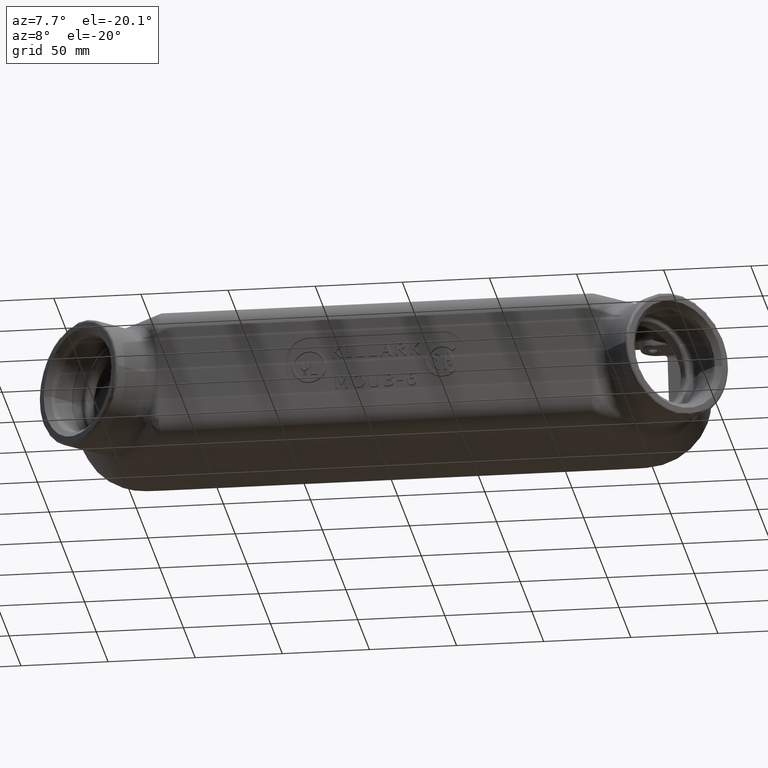
[diagram: clean part render]
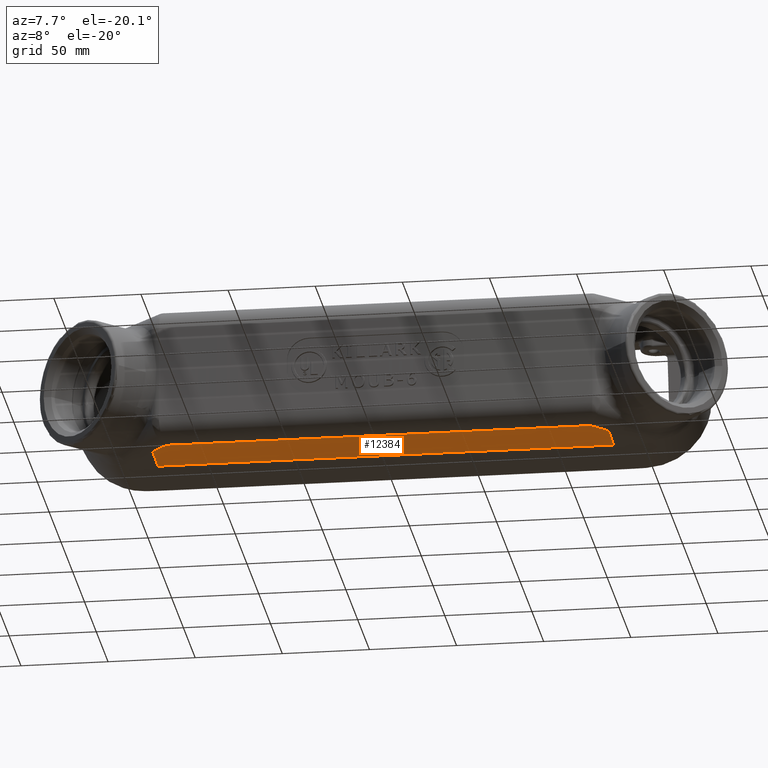
[diagram: same view with one face highlighted and labeled with its STEP entity id]
A machine part, auxiliary view. The second image highlights one B-rep face of the part: STEP entity #12384.
In plain terms, the highlighted planar face has unit normal (0, -0.0262, -0.9997).
Its self-contained STEP definition (entity closure, byte-faithful):
#1085=PLANE('',#13354);
#1733=FACE_OUTER_BOUND('',#2506,.T.);
#2506=EDGE_LOOP('',(#10704,#10705,#10706,#10707,#10708,#10709));
#3478=LINE('',#27055,#4368);
#3479=LINE('',#27057,#4369);
#3480=LINE('',#27084,#4370);
#3496=LINE('',#27524,#4386);
#3497=LINE('',#27558,#4387);
#3498=LINE('',#27559,#4388);
#4368=VECTOR('',#15511,0.393700787401575);
#4369=VECTOR('',#15514,0.393700787401575);
#4370=VECTOR('',#15515,0.393700787401575);
#4386=VECTOR('',#15589,0.393700787401575);
#4387=VECTOR('',#15596,0.393700787401575);
#4388=VECTOR('',#15597,0.393700787401575);
#5867=VERTEX_POINT('',#26460);
#5868=VERTEX_POINT('',#26483);
#5899=VERTEX_POINT('',#26993);
#5900=VERTEX_POINT('',#27078);
#5939=VERTEX_POINT('',#27522);
#5941=VERTEX_POINT('',#27557);
#7546=EDGE_CURVE('',#5867,#5899,#3478,.T.);
#7547=EDGE_CURVE('',#5868,#5867,#3479,.T.);
#7549=EDGE_CURVE('',#5868,#5900,#3480,.T.);
#7601=EDGE_CURVE('',#5939,#5899,#3496,.T.);
#7604=EDGE_CURVE('',#5941,#5939,#3497,.T.);
#7605=EDGE_CURVE('',#5900,#5941,#3498,.T.);
#10704=ORIENTED_EDGE('',*,*,#7601,.F.);
#10705=ORIENTED_EDGE('',*,*,#7604,.F.);
#10706=ORIENTED_EDGE('',*,*,#7605,.F.);
#10707=ORIENTED_EDGE('',*,*,#7549,.F.);
#10708=ORIENTED_EDGE('',*,*,#7547,.T.);
#10709=ORIENTED_EDGE('',*,*,#7546,.T.);
#12384=ADVANCED_FACE('',(#1733),#1085,.T.);
#13354=AXIS2_PLACEMENT_3D('',#27556,#15594,#15595);
#15511=DIRECTION('',(0.,-0.999657324975557,0.0261769483078732));
#15514=DIRECTION('',(1.,3.39665479028408E-17,0.));
#15515=DIRECTION('',(0.,-0.999657324975557,0.0261769483078732));
#15589=DIRECTION('',(0.706985596127133,0.706985596127133,-0.01851306937073));
#15594=DIRECTION('center_axis',(8.8914056864956E-19,-0.0261769483078732,
-0.999657324975557));
#15595=DIRECTION('ref_axis',(-1.,-1.16394876328415E-20,-8.8914056864956E-19));
#15596=DIRECTION('',(1.,0.,8.89445359359819E-19));
#15597=DIRECTION('',(0.706985596127133,-0.706985596127133,0.01851306937073));
#26460=CARTESIAN_POINT('',(5.14736652351681,0.,-1.59375));
#26483=CARTESIAN_POINT('',(-5.14736652351682,-3.49676543189026E-16,-1.59375));
#26993=CARTESIAN_POINT('',(5.14736652351681,-0.877365169450573,-1.57077538448523));
#27055=CARTESIAN_POINT('',(5.14736652351681,0.,-1.59375));
#27057=CARTESIAN_POINT('',(-5.14736652351682,-3.49676543189026E-16,-1.59375));
#27078=CARTESIAN_POINT('',(-5.14736652351682,-0.877365169450572,-1.57077538448523));
#27084=CARTESIAN_POINT('',(-5.14736652351682,-3.49676543189026E-16,-1.59375));
#27522=CARTESIAN_POINT('',(4.79289321881345,-1.23183847415394,-1.5614931743299));
#27524=CARTESIAN_POINT('',(5.59320938819234,-0.431522304775043,-1.58245019077181));
#27556=CARTESIAN_POINT('Origin',(7.125,0.,-1.59375));
#27557=CARTESIAN_POINT('',(-4.79289321881345,-1.23183847415394,-1.5614931743299));
#27558=CARTESIAN_POINT('',(3.5625,-1.23183847415394,-1.5614931743299));
#27559=CARTESIAN_POINT('',(-3.09406622253616,-2.93066547043123,-1.51700782384576));